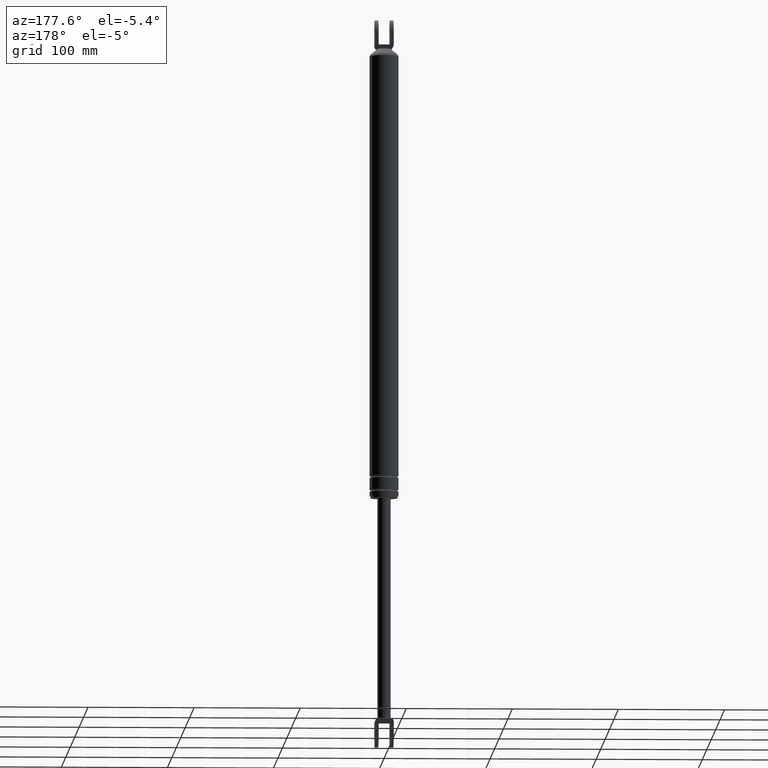
[diagram: clean part render]
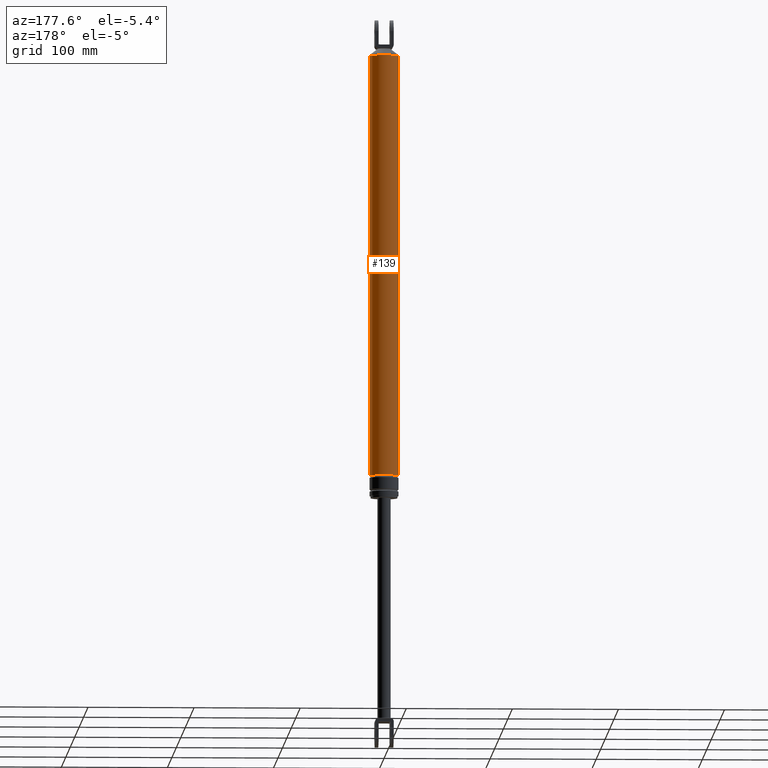
[diagram: same view with one face highlighted and labeled with its STEP entity id]
A machine part, auxiliary view. The second image highlights one B-rep face of the part: STEP entity #139.
In plain terms, the highlighted cylindrical surface (edge-blend (fillet) strip) has radius 13.7 mm, axis along (0, 0, 1).
Its self-contained STEP definition (entity closure, byte-faithful):
#139=ADVANCED_FACE('',(#451),#450,.T.);
#450=CYLINDRICAL_SURFACE('',#1033,1.37000000000E+001);
#451=FACE_OUTER_BOUND('',#1034,.T.);
#1030=CARTESIAN_POINT('',(0.00000000000E+000,0.00000000000E+000,1.02100000000E+003));
#1031=DIRECTION('',(-0.00000000000E+000,-0.00000000000E+000,1.00000000000E+000));
#1032=DIRECTION('',(1.00000000000E+000,0.00000000000E+000,0.00000000000E+000));
#1033=AXIS2_PLACEMENT_3D('',#1030,#1031,#1032);
#1034=EDGE_LOOP('',(#1516,#1517,#1518,#1519));
#1516=ORIENTED_EDGE('',*,*,#1759,.T.);
#1517=ORIENTED_EDGE('',*,*,#1760,.F.);
#1518=ORIENTED_EDGE('',*,*,#1761,.F.);
#1519=ORIENTED_EDGE('',*,*,#1762,.T.);
#1759=EDGE_CURVE('',#2297,#2296,#2316,.T.);
#1760=EDGE_CURVE('',#2322,#2296,#2323,.T.);
#1761=EDGE_CURVE('',#2329,#2322,#2330,.T.);
#1762=EDGE_CURVE('',#2329,#2297,#2336,.T.);
#2296=VERTEX_POINT('',#3146);
#2297=VERTEX_POINT('',#3147);
#2316=CIRCLE('',#3159,1.37000000000E+001);
#2322=VERTEX_POINT('',#3160);
#2323=(BOUNDED_CURVE() B_SPLINE_CURVE(1,(#3161,#3162),.UNSPECIFIED.,.F.,.F.) B_SPLINE_CURVE_WITH_KNOTS((2,2),(2.39808171061E-002,9.76019182784E-001),.UNSPECIFIED.) CURVE() GEOMETRIC_REPRESENTATION_ITEM() RATIONAL_B_SPLINE_CURVE((1.00000000000E+000,1.00000000000E+000)) REPRESENTATION_ITEM('') );
#2329=VERTEX_POINT('',#3163);
#2330=CIRCLE('',#3167,1.37000000000E+001);
#2336=(BOUNDED_CURVE() B_SPLINE_CURVE(1,(#3168,#3169),.UNSPECIFIED.,.F.,.F.) B_SPLINE_CURVE_WITH_KNOTS((2,2),(2.39808171305E-002,9.76019182870E-001),.UNSPECIFIED.) CURVE() GEOMETRIC_REPRESENTATION_ITEM() RATIONAL_B_SPLINE_CURVE((7.50000000000E-001,7.50000000000E-001)) REPRESENTATION_ITEM('') );
#3146=CARTESIAN_POINT('',(1.37000000000E+001,0.00000000000E+000,4.17999969000E+002));
#3147=CARTESIAN_POINT('',(-1.37000000000E+001,0.00000000000E+000,4.17999969000E+002));
#3156=CARTESIAN_POINT('',(0.00000000000E+000,0.00000000000E+000,4.17999969000E+002));
#3157=DIRECTION('',(-0.00000000000E+000,0.00000000000E+000,-1.00000000000E+000));
#3158=DIRECTION('',(-1.00000000000E+000,-1.22460635382E-016,0.00000000000E+000));
#3159=AXIS2_PLACEMENT_3D('',#3156,#3157,#3158);
#3160=CARTESIAN_POINT('',(1.37000000000E+001,0.00000000000E+000,2.10000000000E+001));
#3161=CARTESIAN_POINT('',(1.37000000000E+001,0.00000000000E+000,2.09999999899E+001));
#3162=CARTESIAN_POINT('',(1.37000000000E+001,0.00000000000E+000,4.17999968964E+002));
#3163=CARTESIAN_POINT('',(-1.37000000000E+001,0.00000000000E+000,2.10000000000E+001));
#3164=CARTESIAN_POINT('',(0.00000000000E+000,0.00000000000E+000,2.10000000000E+001));
#3165=DIRECTION('',(-0.00000000000E+000,0.00000000000E+000,-1.00000000000E+000));
#3166=DIRECTION('',(-1.00000000000E+000,-1.22460635382E-016,0.00000000000E+000));
#3167=AXIS2_PLACEMENT_3D('',#3164,#3165,#3166);
#3168=CARTESIAN_POINT('',(-1.37000000000E+001,-5.92118946467E-016,2.10000000000E+001));
#3169=CARTESIAN_POINT('',(-1.37000000000E+001,-5.92118946467E-016,4.17999969000E+002));